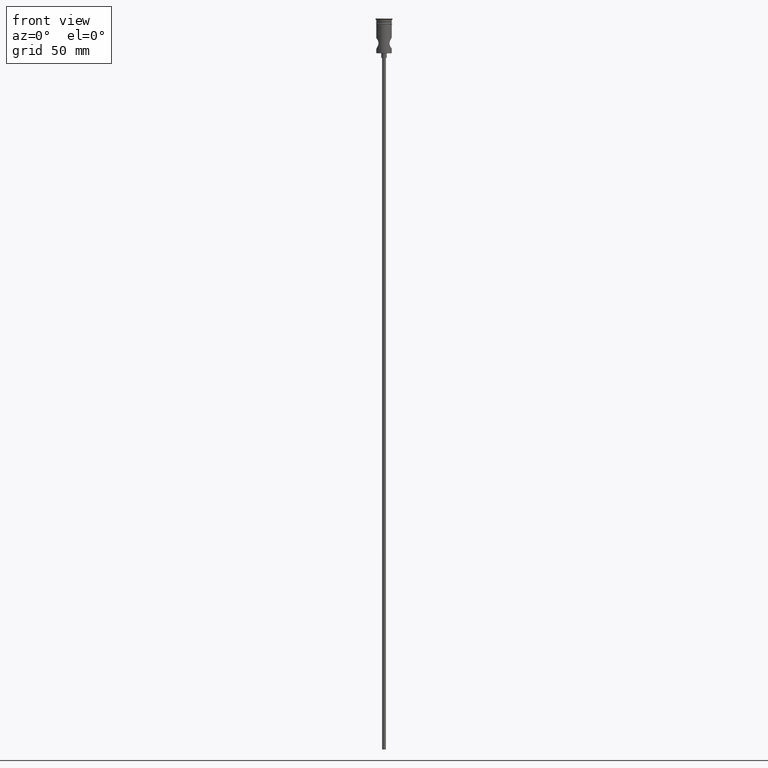
[diagram: clean part render]
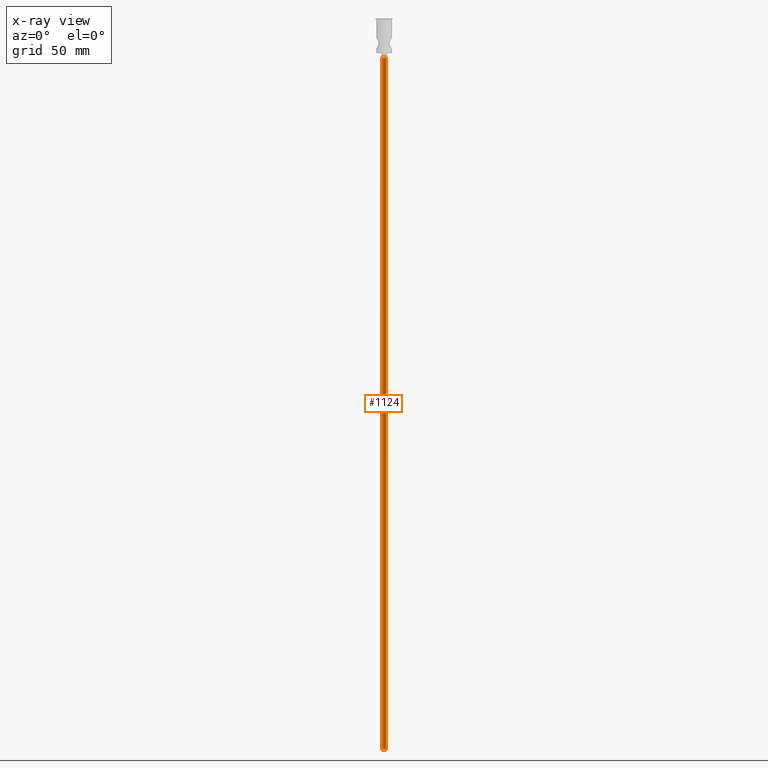
[diagram: x-ray — body ghosted, one internal face saturated and labeled with its STEP entity id]
A machine part, front view, then the same camera in x-ray: the body is ghosted and one INTERNAL B-rep face — a face not visible from any outside direction — is saturated and labeled: STEP entity #1124.
In plain terms, the highlighted cylindrical surface (edge-blend (fillet) strip) has radius 1.25 mm, axis along (-0, -0, 1).
Its self-contained STEP definition (entity closure, byte-faithful):
#67 = ORIENTED_EDGE ( 'NONE', *, *, #319, .F. ) ;
#81 = CIRCLE ( 'NONE', #894, 1.250000000000000000 ) ;
#107 = ORIENTED_EDGE ( 'NONE', *, *, #287, .T. ) ;
#132 = DIRECTION ( 'NONE',  ( -1.000000000000000000, 0.000000000000000000, 0.000000000000000000 ) ) ;
#180 = VERTEX_POINT ( 'NONE', #1075 ) ;
#199 = CIRCLE ( 'NONE', #1379, 1.250000000000000000 ) ;
#239 = CARTESIAN_POINT ( 'NONE',  ( 1.250000000000000000, 0.000000000000000000, -472.5000000000000568 ) ) ;
#278 = EDGE_CURVE ( 'NONE', #1092, #944, #698, .T. ) ;
#287 = EDGE_CURVE ( 'NONE', #850, #944, #81, .T. ) ;
#291 = DIRECTION ( 'NONE',  ( -0.000000000000000000, -0.000000000000000000, 1.000000000000000000 ) ) ;
#304 = ORIENTED_EDGE ( 'NONE', *, *, #278, .F. ) ;
#319 = EDGE_CURVE ( 'NONE', #180, #1092, #199, .T. ) ;
#383 = DIRECTION ( 'NONE',  ( 1.000000000000000000, 0.000000000000000000, 0.000000000000000000 ) ) ;
#385 = DIRECTION ( 'NONE',  ( -1.000000000000000000, 0.000000000000000000, 0.000000000000000000 ) ) ;
#478 = CARTESIAN_POINT ( 'NONE',  ( 0.000000000000000000, 0.000000000000000000, -472.5000000000000568 ) ) ;
#496 = CYLINDRICAL_SURFACE ( 'NONE', #532, 1.250000000000000000 ) ;
#502 = DIRECTION ( 'NONE',  ( -0.000000000000000000, -0.000000000000000000, 1.000000000000000000 ) ) ;
#532 = AXIS2_PLACEMENT_3D ( 'NONE', #931, #291, #383 ) ;
#586 = CARTESIAN_POINT ( 'NONE',  ( 0.000000000000000000, 0.000000000000000000, -25.50000000000000000 ) ) ;
#588 = CARTESIAN_POINT ( 'NONE',  ( -1.250000000000000000, 1.530808498934191571E-16, -472.5000000000000568 ) ) ;
#607 = DIRECTION ( 'NONE',  ( 0.000000000000000000, 0.000000000000000000, -1.000000000000000000 ) ) ;
#691 = CARTESIAN_POINT ( 'NONE',  ( 1.250000000000000000, 0.000000000000000000, -25.50000000000000000 ) ) ;
#698 = LINE ( 'NONE', #1252, #716 ) ;
#716 = VECTOR ( 'NONE', #502, 1000.000000000000000 ) ;
#850 = VERTEX_POINT ( 'NONE', #889 ) ;
#877 = ORIENTED_EDGE ( 'NONE', *, *, #927, .T. ) ;
#889 = CARTESIAN_POINT ( 'NONE',  ( -1.250000000000000000, 1.530808498934191571E-16, -25.50000000000000000 ) ) ;
#894 = AXIS2_PLACEMENT_3D ( 'NONE', #586, #607, #385 ) ;
#915 = DIRECTION ( 'NONE',  ( -0.000000000000000000, -0.000000000000000000, 1.000000000000000000 ) ) ;
#927 = EDGE_CURVE ( 'NONE', #180, #850, #933, .T. ) ;
#931 = CARTESIAN_POINT ( 'NONE',  ( 0.000000000000000000, 0.000000000000000000, -472.5000000000000568 ) ) ;
#933 = LINE ( 'NONE', #588, #1104 ) ;
#944 = VERTEX_POINT ( 'NONE', #691 ) ;
#1075 = CARTESIAN_POINT ( 'NONE',  ( -1.250000000000000000, 1.530808498934191571E-16, -472.5000000000000568 ) ) ;
#1092 = VERTEX_POINT ( 'NONE', #239 ) ;
#1104 = VECTOR ( 'NONE', #915, 1000.000000000000000 ) ;
#1124 = ADVANCED_FACE ( 'NONE', ( #1155 ), #496, .T. ) ;
#1155 = FACE_OUTER_BOUND ( 'NONE', #1292, .T. ) ;
#1252 = CARTESIAN_POINT ( 'NONE',  ( 1.250000000000000000, 0.000000000000000000, -472.5000000000000568 ) ) ;
#1292 = EDGE_LOOP ( 'NONE', ( #67, #877, #107, #304 ) ) ;
#1334 = DIRECTION ( 'NONE',  ( 0.000000000000000000, 0.000000000000000000, -1.000000000000000000 ) ) ;
#1379 = AXIS2_PLACEMENT_3D ( 'NONE', #478, #1334, #132 ) ;